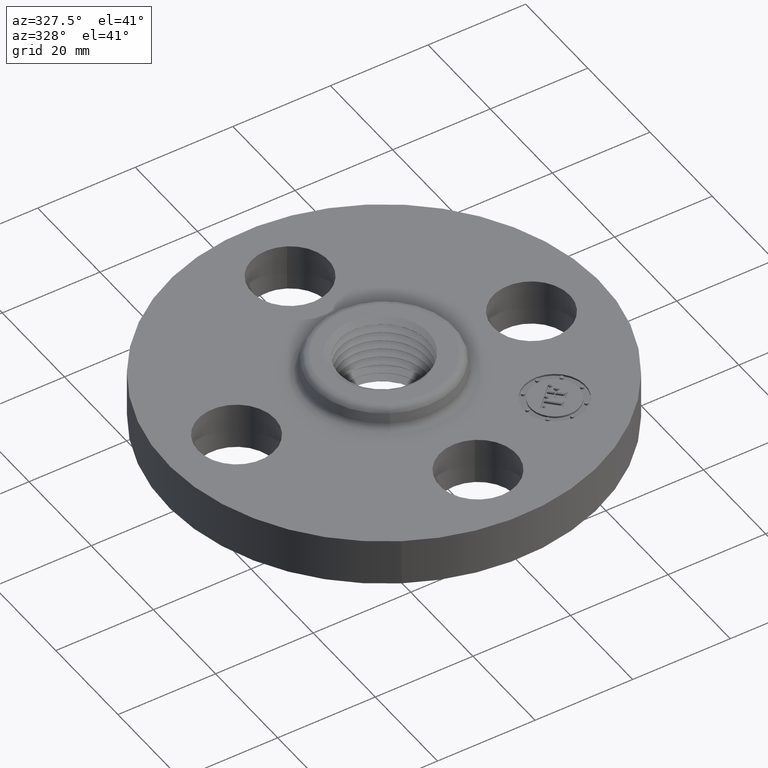
[diagram: clean part render]
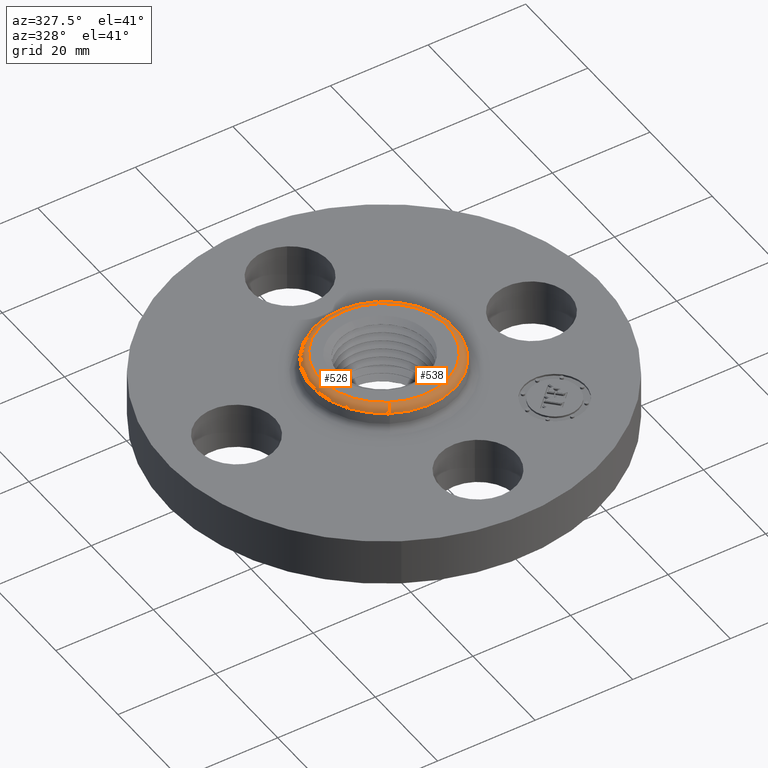
[diagram: same view with one multi-face feature highlighted, each face labeled with its STEP entity id]
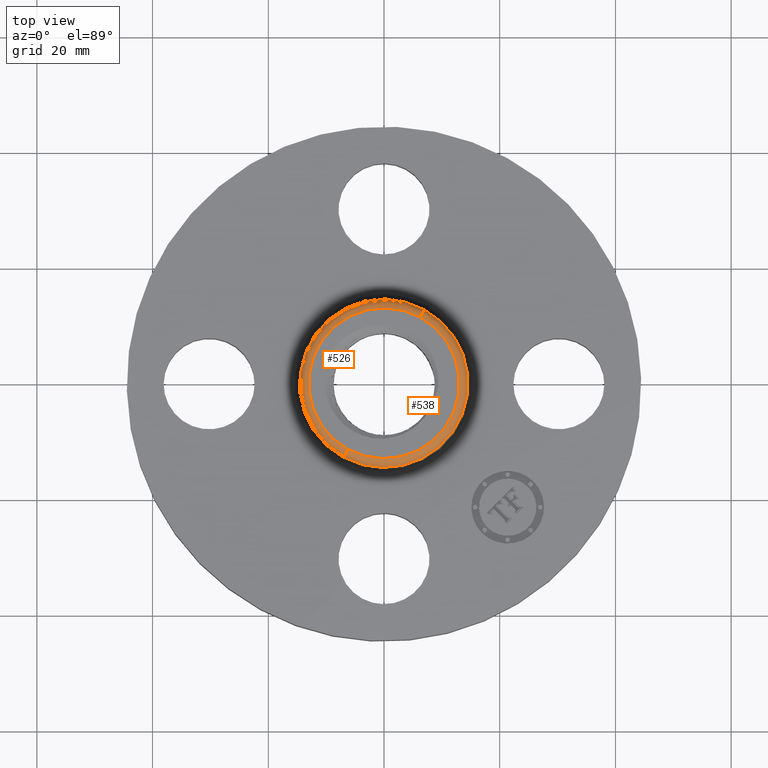
[diagram: same view with one multi-face feature highlighted, each face labeled with its STEP entity id]
A machine part, auxiliary view. The highlighted faces form ONE feature: a constant-radius fillet chain: 2 tangent blend faces with common blend radius 1.524 mm. The faces share edges in the B-rep.
A second angle (top view) of the same feature is appended — it is thin or edge-on in the first view.
Their STEP definitions:
[1] entity #526 (Torus):
#253=AXIS2_PLACEMENT_3D('Circle Axis2P3D',#251,#252,$) ;
#499=AXIS2_PLACEMENT_3D('Torus Axis2P3D',#496,#497,#498) ;
#503=AXIS2_PLACEMENT_3D('Circle Axis2P3D',#501,#502,$) ;
#512=AXIS2_PLACEMENT_3D('Circle Axis2P3D',#510,#511,$) ;
#517=AXIS2_PLACEMENT_3D('Circle Axis2P3D',#515,#516,$) ;
#246=CARTESIAN_POINT('Vertex',(0.245904629528,0.450125405063,0.560000000002)) ;
#248=CARTESIAN_POINT('Vertex',(-0.245904629528,-0.450125405063,0.560000000002)) ;
#251=CARTESIAN_POINT('Axis2P3D Location',(0.,0.,0.560000000002)) ;
#496=CARTESIAN_POINT('Axis2P3D Location',(0.,0.,0.500000000002)) ;
#501=CARTESIAN_POINT('Axis2P3D Location',(0.,0.,0.510418890662)) ;
#505=CARTESIAN_POINT('Vertex',(-0.274233148773,-0.501980411715,0.510418890662)) ;
#507=CARTESIAN_POINT('Vertex',(0.274233148773,0.501980411715,0.510418890662)) ;
#510=CARTESIAN_POINT('Axis2P3D Location',(-0.245904629528,-0.450125405063,0.500000000002)) ;
#515=CARTESIAN_POINT('Axis2P3D Location',(0.245904629528,0.450125405063,0.500000000002)) ;
#252=DIRECTION('Axis2P3D Direction',(0.,0.,-0.0393700787402)) ;
#497=DIRECTION('Axis2P3D Direction',(0.,0.,-0.0393700787402)) ;
#498=DIRECTION('Axis2P3D XDirection',(0.0188750212049,0.0345504945626,0.)) ;
#502=DIRECTION('Axis2P3D Direction',(0.,0.,-0.0393700787402)) ;
#511=DIRECTION('Axis2P3D Direction',(0.0345504945626,-0.0188750212049,0.)) ;
#516=DIRECTION('Axis2P3D Direction',(-0.0345504945626,0.0188750212049,0.)) ;
#521=ORIENTED_EDGE('',*,*,#509,.F.) ;
#522=ORIENTED_EDGE('',*,*,#514,.T.) ;
#523=ORIENTED_EDGE('',*,*,#255,.T.) ;
#524=ORIENTED_EDGE('',*,*,#519,.F.) ;
#526=ADVANCED_FACE('PartBody',(#525),#500,.T.) ;
#254=CIRCLE('generated circle',#253,0.512915165604) ;
#504=CIRCLE('generated circle',#503,0.572003630785) ;
#513=CIRCLE('generated circle',#512,0.0600000000002) ;
#518=CIRCLE('generated circle',#517,0.0600000000002) ;
#500=TOROIDAL_SURFACE('homeo Torus',#499,0.512915165604,0.0600000000002) ;
#255=EDGE_CURVE('',#249,#247,#254,.T.) ;
#509=EDGE_CURVE('',#506,#508,#504,.T.) ;
#514=EDGE_CURVE('',#506,#249,#513,.F.) ;
#519=EDGE_CURVE('',#508,#247,#518,.F.) ;
#520=EDGE_LOOP('',(#521,#522,#523,#524)) ;
#525=FACE_OUTER_BOUND('',#520,.T.) ;
#247=VERTEX_POINT('',#246) ;
#249=VERTEX_POINT('',#248) ;
#506=VERTEX_POINT('',#505) ;
#508=VERTEX_POINT('',#507) ;
[2] entity #538 (Torus):
#244=AXIS2_PLACEMENT_3D('Circle Axis2P3D',#242,#243,$) ;
#499=AXIS2_PLACEMENT_3D('Torus Axis2P3D',#496,#497,#498) ;
#512=AXIS2_PLACEMENT_3D('Circle Axis2P3D',#510,#511,$) ;
#517=AXIS2_PLACEMENT_3D('Circle Axis2P3D',#515,#516,$) ;
#529=AXIS2_PLACEMENT_3D('Circle Axis2P3D',#527,#528,$) ;
#242=CARTESIAN_POINT('Axis2P3D Location',(0.,0.,0.560000000002)) ;
#246=CARTESIAN_POINT('Vertex',(0.245904629528,0.450125405063,0.560000000002)) ;
#248=CARTESIAN_POINT('Vertex',(-0.245904629528,-0.450125405063,0.560000000002)) ;
#496=CARTESIAN_POINT('Axis2P3D Location',(0.,0.,0.500000000002)) ;
#505=CARTESIAN_POINT('Vertex',(-0.274233148773,-0.501980411715,0.510418890662)) ;
#507=CARTESIAN_POINT('Vertex',(0.274233148773,0.501980411715,0.510418890662)) ;
#510=CARTESIAN_POINT('Axis2P3D Location',(-0.245904629528,-0.450125405063,0.500000000002)) ;
#515=CARTESIAN_POINT('Axis2P3D Location',(0.245904629528,0.450125405063,0.500000000002)) ;
#527=CARTESIAN_POINT('Axis2P3D Location',(0.,0.,0.510418890662)) ;
#243=DIRECTION('Axis2P3D Direction',(0.,0.,-0.0393700787402)) ;
#497=DIRECTION('Axis2P3D Direction',(0.,0.,-0.0393700787402)) ;
#498=DIRECTION('Axis2P3D XDirection',(0.0188750212049,0.0345504945626,0.)) ;
#511=DIRECTION('Axis2P3D Direction',(0.0345504945626,-0.0188750212049,0.)) ;
#516=DIRECTION('Axis2P3D Direction',(-0.0345504945626,0.0188750212049,0.)) ;
#528=DIRECTION('Axis2P3D Direction',(0.,0.,-0.0393700787402)) ;
#533=ORIENTED_EDGE('',*,*,#531,.F.) ;
#534=ORIENTED_EDGE('',*,*,#519,.T.) ;
#535=ORIENTED_EDGE('',*,*,#250,.T.) ;
#536=ORIENTED_EDGE('',*,*,#514,.F.) ;
#538=ADVANCED_FACE('PartBody',(#537),#500,.T.) ;
#245=CIRCLE('generated circle',#244,0.512915165604) ;
#513=CIRCLE('generated circle',#512,0.0600000000002) ;
#518=CIRCLE('generated circle',#517,0.0600000000002) ;
#530=CIRCLE('generated circle',#529,0.572003630785) ;
#500=TOROIDAL_SURFACE('homeo Torus',#499,0.512915165604,0.0600000000002) ;
#250=EDGE_CURVE('',#247,#249,#245,.T.) ;
#514=EDGE_CURVE('',#506,#249,#513,.F.) ;
#519=EDGE_CURVE('',#508,#247,#518,.F.) ;
#531=EDGE_CURVE('',#508,#506,#530,.T.) ;
#532=EDGE_LOOP('',(#533,#534,#535,#536)) ;
#537=FACE_OUTER_BOUND('',#532,.T.) ;
#247=VERTEX_POINT('',#246) ;
#249=VERTEX_POINT('',#248) ;
#506=VERTEX_POINT('',#505) ;
#508=VERTEX_POINT('',#507) ;